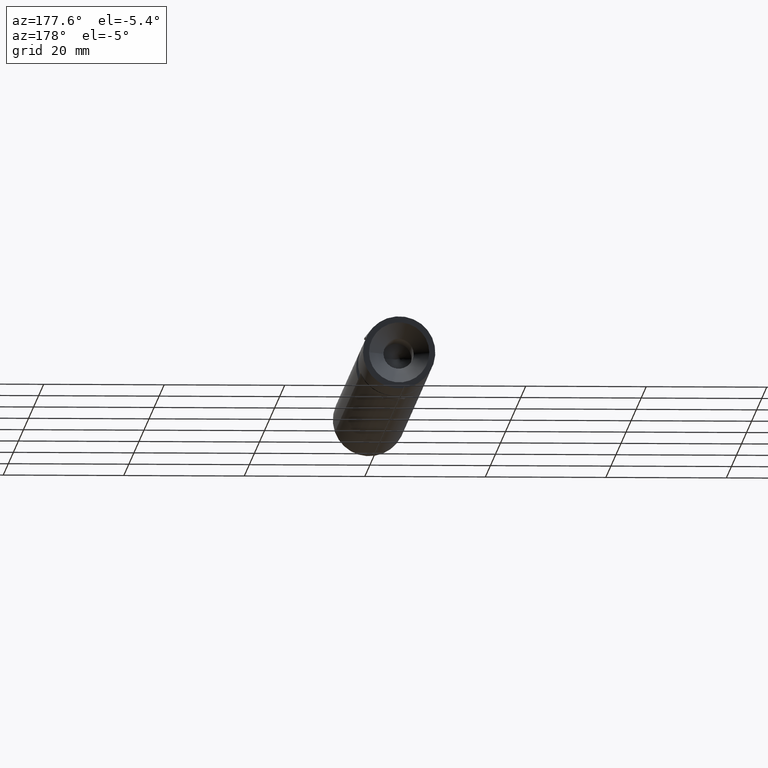
[diagram: clean part render]
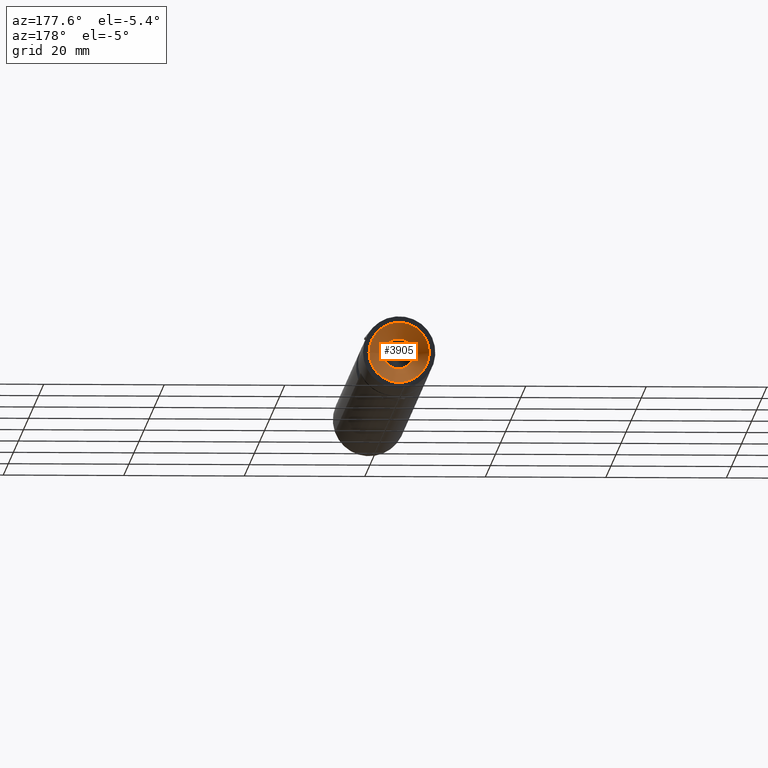
[diagram: same view with one face highlighted and labeled with its STEP entity id]
A machine part, auxiliary view. The second image highlights one B-rep face of the part: STEP entity #3905.
In plain terms, the highlighted conical surface has half-angle 45 deg.
Its self-contained STEP definition (entity closure, byte-faithful):
#608 = DIRECTION ( 'NONE',  ( -6.270394377842564300E-033, -1.000000000000000000, 5.200459125639017200E-051 ) ) ;
#2217 = DIRECTION ( 'NONE',  ( 6.270394377842564300E-033, 1.000000000000000000, -5.200459125639017200E-051 ) ) ;
#2227 = EDGE_LOOP ( 'NONE', ( #2395 ) ) ;
#2395 = ORIENTED_EDGE ( 'NONE', *, *, #10205, .T. ) ;
#2440 = DIRECTION ( 'NONE',  ( 6.270394377842564300E-033, 1.000000000000000000, -5.200459125639017200E-051 ) ) ;
#2605 = CONICAL_SURFACE ( 'NONE', #6907, 5.000000000000000000, 0.7853981633974487200 ) ;
#3211 = CARTESIAN_POINT ( 'NONE',  ( 2.284215094785504200E-032, 25.49999999999999600, 0.0000000000000000000 ) ) ;
#3288 = FACE_BOUND ( 'NONE', #3373, .T. ) ;
#3373 = EDGE_LOOP ( 'NONE', ( #8365 ) ) ;
#3625 = FACE_OUTER_BOUND ( 'NONE', #2227, .T. ) ;
#3905 = ADVANCED_FACE ( 'NONE', ( #3288, #3625 ), #2605, .F. ) ;
#5343 = CIRCLE ( 'NONE', #7436, 5.000000000000000000 ) ;
#5625 = EDGE_CURVE ( 'NONE', #10271, #10271, #8572, .T. ) ;
#6072 = DIRECTION ( 'NONE',  ( -2.696301922142130200E-033, 0.0000000000000000000, 1.000000000000000000 ) ) ;
#6645 = DIRECTION ( 'NONE',  ( -2.696301922142130200E-033, 0.0000000000000000000, 1.000000000000000000 ) ) ;
#6821 = CARTESIAN_POINT ( 'NONE',  ( 9.360641337144391100E-033, 25.49999999999999600, 5.000000000000000000 ) ) ;
#6907 = AXIS2_PLACEMENT_3D ( 'NONE', #8990, #2440, #11081 ) ;
#7436 = AXIS2_PLACEMENT_3D ( 'NONE', #3211, #2217, #6645 ) ;
#8319 = CARTESIAN_POINT ( 'NONE',  ( 2.060272438433982200E-032, 22.99999999999999300, 0.0000000000000000000 ) ) ;
#8365 = ORIENTED_EDGE ( 'NONE', *, *, #5625, .T. ) ;
#8572 = CIRCLE ( 'NONE', #9974, 2.499999999999993300 ) ;
#8990 = CARTESIAN_POINT ( 'NONE',  ( 2.284215094785504200E-032, 25.49999999999999600, 0.0000000000000000000 ) ) ;
#9570 = VERTEX_POINT ( 'NONE', #6821 ) ;
#9974 = AXIS2_PLACEMENT_3D ( 'NONE', #8319, #608, #6072 ) ;
#10205 = EDGE_CURVE ( 'NONE', #9570, #9570, #5343, .T. ) ;
#10271 = VERTEX_POINT ( 'NONE', #12195 ) ;
#11081 = DIRECTION ( 'NONE',  ( -2.696301922142130200E-033, 0.0000000000000000000, 1.000000000000000000 ) ) ;
#12195 = CARTESIAN_POINT ( 'NONE',  ( 1.386196957898451500E-032, 22.99999999999999300, 2.499999999999993300 ) ) ;